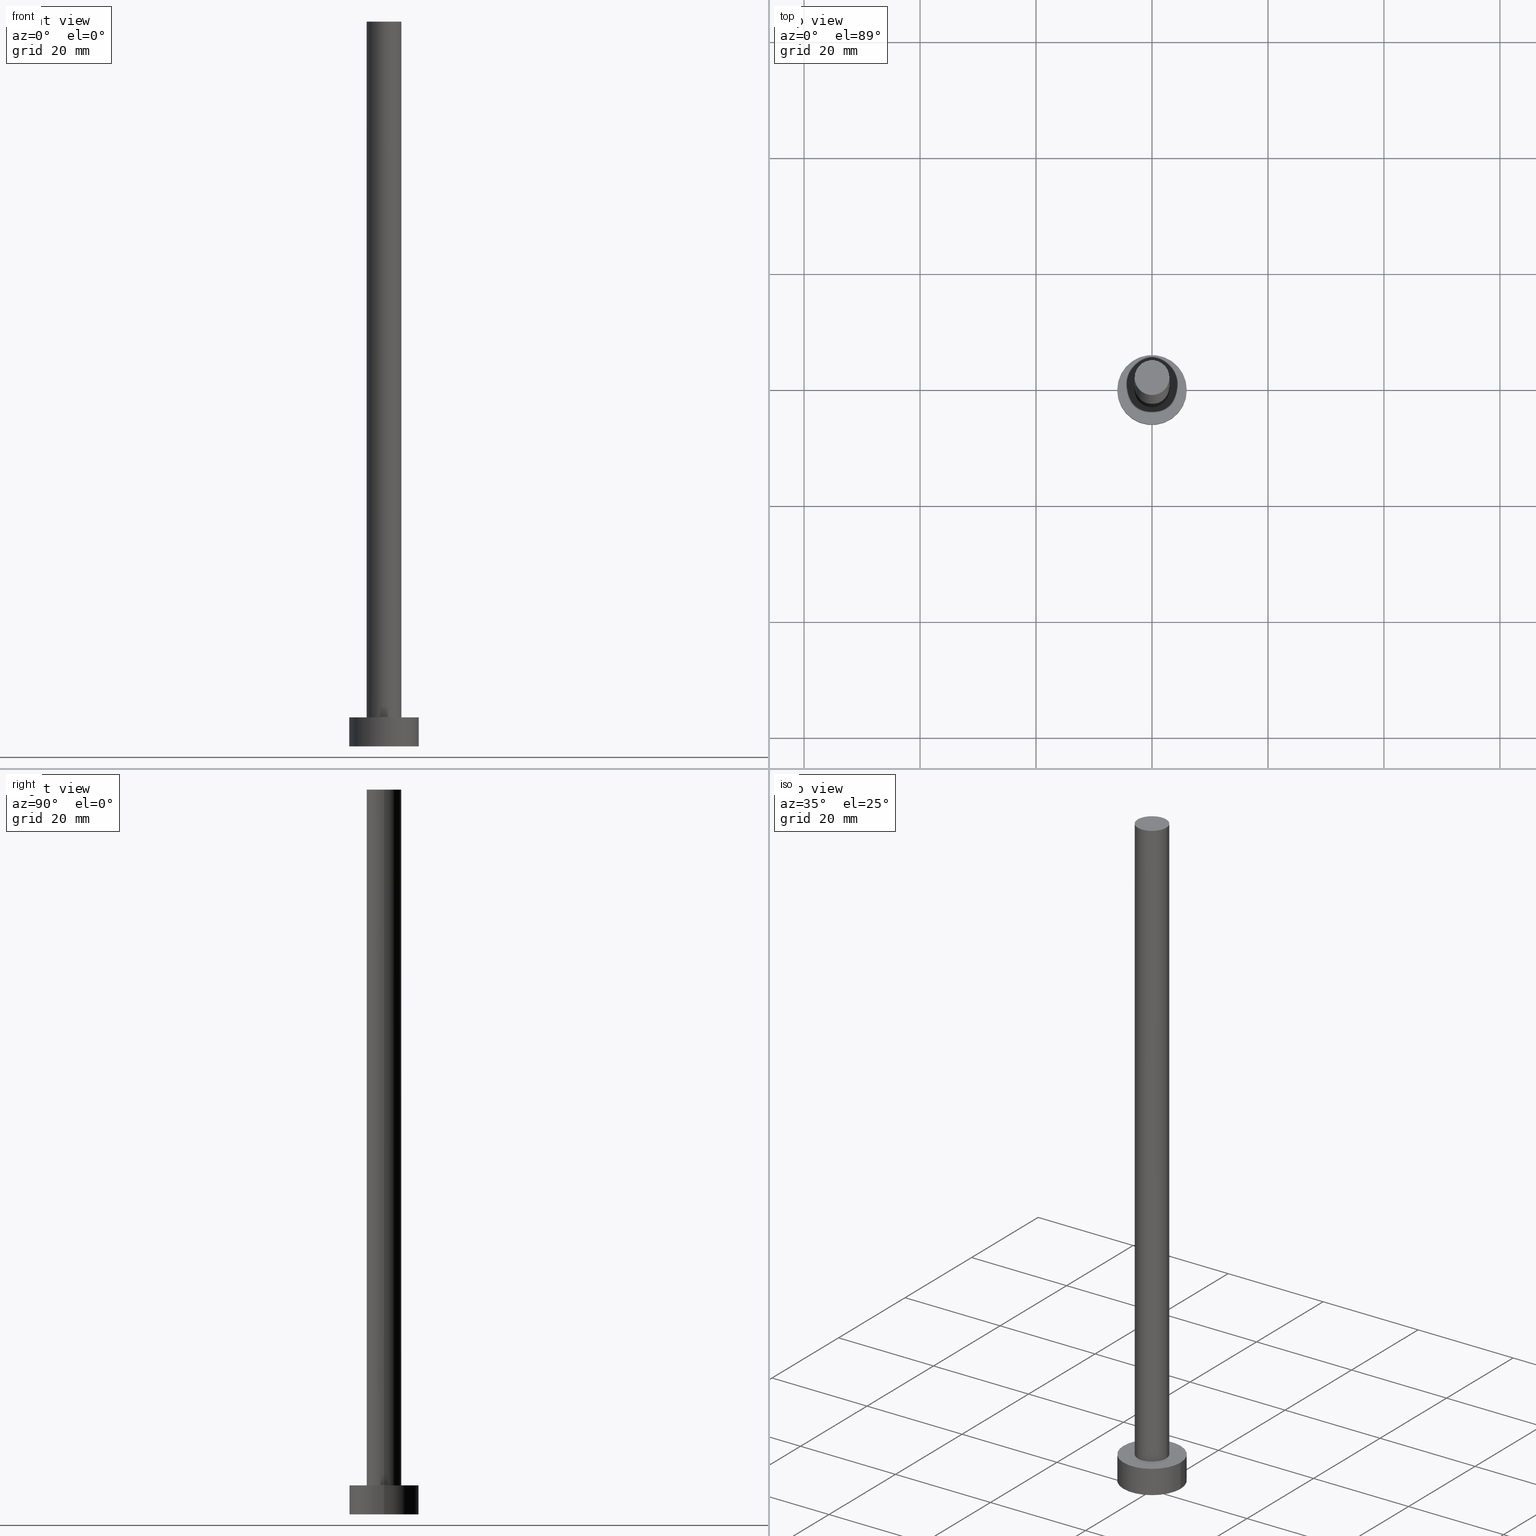
[diagram: canonical four-view strip — front | top / right | iso, engineering-drawing reading convention]
A machine part, canonical four-view strip (front | top / right | iso — engineering-drawing reading convention). The complete STEP part file that produces these views, byte-faithful:
ISO-10303-21;
HEADER;
FILE_DESCRIPTION (( 'STEP AP203' ),
    '1' );
FILE_NAME ('daf2.STEP',
    '2023-02-13T12:38:32',
    ( '' ),
    ( '' ),
    'SwSTEP 2.0',
    'SolidWorks 2019',
    '' );
FILE_SCHEMA (( 'CONFIG_CONTROL_DESIGN' ));
ENDSEC;

DATA;
#1 = EDGE_CURVE ( 'NONE', #182, #237, #229, .T. ) ;
#2 = AXIS2_PLACEMENT_3D ( 'NONE', #90, #40, #206 ) ;
#3 = PERSON_AND_ORGANIZATION_ROLE ( 'classification_officer' ) ;
#4 = ORIENTED_EDGE ( 'NONE', *, *, #82, .T. ) ;
#5 = DIRECTION ( 'NONE',  ( -0.000000000000000000, -0.000000000000000000, -1.000000000000000000 ) ) ;
#6 = CARTESIAN_POINT ( 'NONE',  ( 0.000000000000000000, 0.000000000000000000, 5.000000000000000000 ) ) ;
#7 = PRODUCT_RELATED_PRODUCT_CATEGORY ( 'detail', '', ( #83 ) ) ;
#8 = CARTESIAN_POINT ( 'NONE',  ( 0.000000000000000000, 0.000000000000000000, 5.000000000000000000 ) ) ;
#9 = CC_DESIGN_DATE_AND_TIME_ASSIGNMENT ( #246, #61, ( #169 ) ) ;
#10 = LOCAL_TIME ( 13, 38, 32.00000000000000000, #65 ) ;
#11 = CARTESIAN_POINT ( 'NONE',  ( 3.000000000000000444, 3.673940397442060361E-16, 5.000000000000000000 ) ) ;
#12 = CYLINDRICAL_SURFACE ( 'NONE', #85, 6.000000000000000888 ) ;
#13 = CARTESIAN_POINT ( 'NONE',  ( 3.000000000000000444, 3.673940397442060361E-16, 125.0000000000000000 ) ) ;
#14 = VECTOR ( 'NONE', #80, 1000.000000000000000 ) ;
#15 = CC_DESIGN_PERSON_AND_ORGANIZATION_ASSIGNMENT ( #76, #213, ( #198 ) ) ;
#16 = CARTESIAN_POINT ( 'NONE',  ( 0.000000000000000000, 0.000000000000000000, 5.000000000000000000 ) ) ;
#17 = ADVANCED_FACE ( 'NONE', ( #71 ), #151, .T. ) ;
#18 = AXIS2_PLACEMENT_3D ( 'NONE', #242, #87, #202 ) ;
#19 = COORDINATED_UNIVERSAL_TIME_OFFSET ( 1, 0, .AHEAD. ) ;
#20 = EDGE_LOOP ( 'NONE', ( #239, #214 ) ) ;
#21 = PERSON_AND_ORGANIZATION ( #105, #179 ) ;
#22 = ORIENTED_EDGE ( 'NONE', *, *, #26, .T. ) ;
#23 = ADVANCED_FACE ( 'NONE', ( #215 ), #28, .T. ) ;
#24 = PERSON_AND_ORGANIZATION ( #105, #179 ) ;
#25 = EDGE_LOOP ( 'NONE', ( #114, #240 ) ) ;
#26 = EDGE_CURVE ( 'NONE', #255, #96, #143, .T. ) ;
#27 = DATE_AND_TIME ( #54, #170 ) ;
#28 = PLANE ( 'NONE',  #53 ) ;
#29 = CC_DESIGN_APPROVAL ( #32, ( #198 ) ) ;
#30 = ORIENTED_EDGE ( 'NONE', *, *, #110, .F. ) ;
#31 = LINE ( 'NONE', #102, #188 ) ;
#32 = APPROVAL ( #149, 'NEUR�EN�' ) ;
#33 = AXIS2_PLACEMENT_3D ( 'NONE', #8, #5, #84 ) ;
#34 = DIRECTION ( 'NONE',  ( 1.000000000000000000, 0.000000000000000000, 0.000000000000000000 ) ) ;
#35 = AXIS2_PLACEMENT_3D ( 'NONE', #126, #187, #208 ) ;
#36 = LINE ( 'NONE', #104, #112 ) ;
#37 = CARTESIAN_POINT ( 'NONE',  ( 0.000000000000000000, 0.000000000000000000, 0.000000000000000000 ) ) ;
#38 = DIRECTION ( 'NONE',  ( -1.000000000000000000, 0.000000000000000000, 0.000000000000000000 ) ) ;
#39 = APPROVAL_ROLE ( '' ) ;
#40 = DIRECTION ( 'NONE',  ( 0.000000000000000000, 0.000000000000000000, 1.000000000000000000 ) ) ;
#41 = EDGE_CURVE ( 'NONE', #237, #49, #36, .T. ) ;
#42 = CARTESIAN_POINT ( 'NONE',  ( 0.000000000000000000, 0.000000000000000000, 125.0000000000000000 ) ) ;
#43 = ADVANCED_FACE ( 'NONE', ( #81 ), #219, .T. ) ;
#44 = MECHANICAL_CONTEXT ( 'NONE', #45, 'mechanical' ) ;
#45 = APPLICATION_CONTEXT ( 'configuration controlled 3d designs of mechanical parts and assemblies' ) ;
#46 = EDGE_LOOP ( 'NONE', ( #113, #4, #97, #150 ) ) ;
#47 = APPROVAL_PERSON_ORGANIZATION ( #73, #181, #50 ) ;
#48 = CIRCLE ( 'NONE', #201, 3.000000000000000444 ) ;
#49 = VERTEX_POINT ( 'NONE', #106 ) ;
#50 = APPROVAL_ROLE ( '' ) ;
#51 = CARTESIAN_POINT ( 'NONE',  ( 0.000000000000000000, 0.000000000000000000, 125.0000000000000000 ) ) ;
#52 = VERTEX_POINT ( 'NONE', #11 ) ;
#53 = AXIS2_PLACEMENT_3D ( 'NONE', #154, #58, #140 ) ;
#54 = CALENDAR_DATE ( 2023, 13, 2 ) ;
#55 = ORIENTED_EDGE ( 'NONE', *, *, #128, .F. ) ;
#56 = CARTESIAN_POINT ( 'NONE',  ( -6.000000000000000888, 0.000000000000000000, 5.000000000000000000 ) ) ;
#57 = AXIS2_PLACEMENT_3D ( 'NONE', #60, #205, #124 ) ;
#58 = DIRECTION ( 'NONE',  ( 0.000000000000000000, 0.000000000000000000, 1.000000000000000000 ) ) ;
#59 = DIRECTION ( 'NONE',  ( 1.000000000000000000, 0.000000000000000000, -0.000000000000000000 ) ) ;
#60 = CARTESIAN_POINT ( 'NONE',  ( 0.000000000000000000, 0.000000000000000000, 5.000000000000000000 ) ) ;
#61 = DATE_TIME_ROLE ( 'creation_date' ) ;
#62 = APPLICATION_PROTOCOL_DEFINITION ( 'international standard', 'config_control_design', 1994, #45 ) ;
#63 = DIRECTION ( 'NONE',  ( 1.000000000000000000, 0.000000000000000000, 0.000000000000000000 ) ) ;
#64 = ADVANCED_FACE ( 'NONE', ( #185 ), #171, .T. ) ;
#65 = COORDINATED_UNIVERSAL_TIME_OFFSET ( 1, 0, .AHEAD. ) ;
#66 = APPROVAL_ROLE ( '' ) ;
#67 = EDGE_LOOP ( 'NONE', ( #199, #100, #167, #99 ) ) ;
#68 = ORIENTED_EDGE ( 'NONE', *, *, #204, .F. ) ;
#69 = AXIS2_PLACEMENT_3D ( 'NONE', #221, #245, #34 ) ;
#70 = LOCAL_TIME ( 13, 38, 32.00000000000000000, #180 ) ;
#71 = FACE_OUTER_BOUND ( 'NONE', #67, .T. ) ;
#72 = CC_DESIGN_PERSON_AND_ORGANIZATION_ASSIGNMENT ( #178, #211, ( #198 ) ) ;
#73 = PERSON_AND_ORGANIZATION ( #105, #179 ) ;
#74 = CARTESIAN_POINT ( 'NONE',  ( 0.000000000000000000, 0.000000000000000000, 125.0000000000000000 ) ) ;
#75 = EDGE_CURVE ( 'NONE', #96, #255, #248, .T. ) ;
#76 = PERSON_AND_ORGANIZATION ( #105, #179 ) ;
#77 = ORIENTED_EDGE ( 'NONE', *, *, #110, .T. ) ;
#78 = PLANE ( 'NONE',  #164 ) ;
#79 =( GEOMETRIC_REPRESENTATION_CONTEXT ( 3 ) GLOBAL_UNCERTAINTY_ASSIGNED_CONTEXT ( ( #252 ) ) GLOBAL_UNIT_ASSIGNED_CONTEXT ( ( #108, #207, #107 ) ) REPRESENTATION_CONTEXT ( 'NONE', 'WORKASPACE' ) );
#80 = DIRECTION ( 'NONE',  ( -0.000000000000000000, -0.000000000000000000, -1.000000000000000000 ) ) ;
#81 = FACE_OUTER_BOUND ( 'NONE', #46, .T. ) ;
#82 = EDGE_CURVE ( 'NONE', #182, #52, #243, .T. ) ;
#83 = PRODUCT ( 'daf2', 'daf2', '', ( #44 ) ) ;
#84 = DIRECTION ( 'NONE',  ( -1.000000000000000000, 0.000000000000000000, 0.000000000000000000 ) ) ;
#85 = AXIS2_PLACEMENT_3D ( 'NONE', #16, #88, #125 ) ;
#86 = ADVANCED_FACE ( 'NONE', ( #121 ), #78, .F. ) ;
#87 = DIRECTION ( 'NONE',  ( 0.000000000000000000, 0.000000000000000000, 1.000000000000000000 ) ) ;
#88 = DIRECTION ( 'NONE',  ( -0.000000000000000000, -0.000000000000000000, -1.000000000000000000 ) ) ;
#89 = ADVANCED_FACE ( 'NONE', ( #203, #157 ), #222, .T. ) ;
#90 = CARTESIAN_POINT ( 'NONE',  ( 0.000000000000000000, 0.000000000000000000, 5.000000000000000000 ) ) ;
#91 = CC_DESIGN_SECURITY_CLASSIFICATION ( #193, ( #198 ) ) ;
#92 = DIRECTION ( 'NONE',  ( 1.000000000000000000, 0.000000000000000000, 0.000000000000000000 ) ) ;
#93 = CALENDAR_DATE ( 2023, 13, 2 ) ;
#94 = DATE_TIME_ROLE ( 'classification_date' ) ;
#95 = DATE_AND_TIME ( #232, #70 ) ;
#96 = VERTEX_POINT ( 'NONE', #241 ) ;
#97 = ORIENTED_EDGE ( 'NONE', *, *, #128, .T. ) ;
#98 = VECTOR ( 'NONE', #138, 1000.000000000000000 ) ;
#99 = ORIENTED_EDGE ( 'NONE', *, *, #146, .T. ) ;
#100 = ORIENTED_EDGE ( 'NONE', *, *, #249, .F. ) ;
#101 = MANIFOLD_SOLID_BREP ( 'P�idat vysunut�m3', #217 ) ;
#102 = CARTESIAN_POINT ( 'NONE',  ( 6.000000000000000888, 7.347880794884120722E-16, 5.000000000000000000 ) ) ;
#103 = DESIGN_CONTEXT ( 'detailed design', #195, 'design' ) ;
#104 = CARTESIAN_POINT ( 'NONE',  ( -3.000000000000000444, 0.000000000000000000, 125.0000000000000000 ) ) ;
#105 = PERSON ( 'NEUR�EN�', 'NEUR�EN�', 'NEUR�EN�', ('NEUR�EN�'), ('NEUR�EN�'), ('NEUR�EN�') ) ;
#106 = CARTESIAN_POINT ( 'NONE',  ( -3.000000000000000444, 0.000000000000000000, 5.000000000000000000 ) ) ;
#107 =( NAMED_UNIT ( * ) SI_UNIT ( $, .STERADIAN. ) SOLID_ANGLE_UNIT ( ) );
#108 =( LENGTH_UNIT ( ) NAMED_UNIT ( * ) SI_UNIT ( .MILLI., .METRE. ) );
#109 = LOCAL_TIME ( 13, 38, 32.00000000000000000, #135 ) ;
#110 = EDGE_CURVE ( 'NONE', #133, #96, #31, .T. ) ;
#111 = CARTESIAN_POINT ( 'NONE',  ( 0.000000000000000000, 0.000000000000000000, 5.000000000000000000 ) ) ;
#112 = VECTOR ( 'NONE', #141, 1000.000000000000000 ) ;
#113 = ORIENTED_EDGE ( 'NONE', *, *, #1, .F. ) ;
#114 = ORIENTED_EDGE ( 'NONE', *, *, #26, .F. ) ;
#115 = CALENDAR_DATE ( 2023, 13, 2 ) ;
#116 = DIRECTION ( 'NONE',  ( -1.000000000000000000, 0.000000000000000000, 0.000000000000000000 ) ) ;
#117 = CC_DESIGN_APPROVAL ( #122, ( #169 ) ) ;
#118 = EDGE_CURVE ( 'NONE', #218, #255, #220, .T. ) ;
#119 = EDGE_LOOP ( 'NONE', ( #192, #236 ) ) ;
#120 = CIRCLE ( 'NONE', #224, 3.000000000000000444 ) ;
#121 = FACE_OUTER_BOUND ( 'NONE', #25, .T. ) ;
#122 = APPROVAL ( #253, 'NEUR�EN�' ) ;
#123 = AXIS2_PLACEMENT_3D ( 'NONE', #51, #196, #116 ) ;
#124 = DIRECTION ( 'NONE',  ( 1.000000000000000000, 0.000000000000000000, -0.000000000000000000 ) ) ;
#125 = DIRECTION ( 'NONE',  ( -1.000000000000000000, 0.000000000000000000, 0.000000000000000000 ) ) ;
#126 = CARTESIAN_POINT ( 'NONE',  ( 0.000000000000000000, 0.000000000000000000, 0.000000000000000000 ) ) ;
#127 = PERSON_AND_ORGANIZATION_ROLE ( 'creator' ) ;
#128 = EDGE_CURVE ( 'NONE', #52, #49, #120, .T. ) ;
#129 = CC_DESIGN_PERSON_AND_ORGANIZATION_ASSIGNMENT ( #251, #173, ( #83 ) ) ;
#130 = LOCAL_TIME ( 13, 38, 32.00000000000000000, #247 ) ;
#131 = SECURITY_CLASSIFICATION_LEVEL ( 'unclassified' ) ;
#132 = DIRECTION ( 'NONE',  ( 0.000000000000000000, 0.000000000000000000, 1.000000000000000000 ) ) ;
#133 = VERTEX_POINT ( 'NONE', #210 ) ;
#134 = EDGE_CURVE ( 'NONE', #133, #218, #176, .T. ) ;
#135 = COORDINATED_UNIVERSAL_TIME_OFFSET ( 1, 0, .AHEAD. ) ;
#136 = ORIENTED_EDGE ( 'NONE', *, *, #134, .F. ) ;
#137 = ORIENTED_EDGE ( 'NONE', *, *, #118, .F. ) ;
#138 = DIRECTION ( 'NONE',  ( -0.000000000000000000, -0.000000000000000000, -1.000000000000000000 ) ) ;
#139 = AXIS2_PLACEMENT_3D ( 'NONE', #74, #132, #165 ) ;
#140 = DIRECTION ( 'NONE',  ( 1.000000000000000000, 0.000000000000000000, -0.000000000000000000 ) ) ;
#141 = DIRECTION ( 'NONE',  ( -0.000000000000000000, -0.000000000000000000, -1.000000000000000000 ) ) ;
#142 = DIRECTION ( 'NONE',  ( 0.000000000000000000, 0.000000000000000000, 1.000000000000000000 ) ) ;
#143 = CIRCLE ( 'NONE', #18, 6.000000000000000888 ) ;
#144 = DIRECTION ( 'NONE',  ( 1.000000000000000000, 0.000000000000000000, 0.000000000000000000 ) ) ;
#145 = APPROVAL_PERSON_ORGANIZATION ( #21, #32, #66 ) ;
#146 = EDGE_CURVE ( 'NONE', #49, #52, #48, .T. ) ;
#147 = APPROVAL_DATE_TIME ( #95, #32 ) ;
#148 = ORIENTED_EDGE ( 'NONE', *, *, #146, .F. ) ;
#149 = APPROVAL_STATUS ( 'not_yet_approved' ) ;
#150 = ORIENTED_EDGE ( 'NONE', *, *, #41, .F. ) ;
#151 = CYLINDRICAL_SURFACE ( 'NONE', #123, 3.000000000000000444 ) ;
#152 = APPROVAL_STATUS ( 'not_yet_approved' ) ;
#153 = DIRECTION ( 'NONE',  ( -0.000000000000000000, -0.000000000000000000, -1.000000000000000000 ) ) ;
#154 = CARTESIAN_POINT ( 'NONE',  ( 0.000000000000000000, 0.000000000000000000, 125.0000000000000000 ) ) ;
#155 = PRODUCT_DEFINITION_SHAPE ( 'NONE', 'NONE',  #169 ) ;
#156 = ADVANCED_BREP_SHAPE_REPRESENTATION ( 'daf2', ( #101, #35 ), #79 ) ;
#157 = FACE_OUTER_BOUND ( 'NONE', #119, .T. ) ;
#158 = DIRECTION ( 'NONE',  ( 0.000000000000000000, 0.000000000000000000, 1.000000000000000000 ) ) ;
#159 = AXIS2_PLACEMENT_3D ( 'NONE', #186, #184, #38 ) ;
#160 = DATE_AND_TIME ( #93, #130 ) ;
#161 = APPLICATION_PROTOCOL_DEFINITION ( 'international standard', 'config_control_design', 1994, #195 ) ;
#162 = APPROVAL_DATE_TIME ( #160, #122 ) ;
#163 = APPROVAL_DATE_TIME ( #27, #181 ) ;
#164 = AXIS2_PLACEMENT_3D ( 'NONE', #37, #142, #59 ) ;
#165 = DIRECTION ( 'NONE',  ( 1.000000000000000000, 0.000000000000000000, 0.000000000000000000 ) ) ;
#166 = EDGE_LOOP ( 'NONE', ( #30, #68, #177, #22 ) ) ;
#167 = ORIENTED_EDGE ( 'NONE', *, *, #41, .T. ) ;
#168 = CC_DESIGN_DATE_AND_TIME_ASSIGNMENT ( #235, #94, ( #193 ) ) ;
#169 = PRODUCT_DEFINITION ( 'NEZN�M�', '', #198, #103 ) ;
#170 = LOCAL_TIME ( 13, 38, 32.00000000000000000, #19 ) ;
#171 = CYLINDRICAL_SURFACE ( 'NONE', #33, 6.000000000000000888 ) ;
#172 = CALENDAR_DATE ( 2023, 13, 2 ) ;
#173 = PERSON_AND_ORGANIZATION_ROLE ( 'design_owner' ) ;
#174 = DIRECTION ( 'NONE',  ( 1.000000000000000000, 0.000000000000000000, 0.000000000000000000 ) ) ;
#175 = DIRECTION ( 'NONE',  ( 0.000000000000000000, 0.000000000000000000, 1.000000000000000000 ) ) ;
#176 = CIRCLE ( 'NONE', #244, 6.000000000000000888 ) ;
#177 = ORIENTED_EDGE ( 'NONE', *, *, #118, .T. ) ;
#178 = PERSON_AND_ORGANIZATION ( #105, #179 ) ;
#179 = ORGANIZATION ( 'NEUR�EN�', 'NEUR�EN�', '' ) ;
#180 = COORDINATED_UNIVERSAL_TIME_OFFSET ( 1, 0, .AHEAD. ) ;
#181 = APPROVAL ( #152, 'NEUR�EN�' ) ;
#182 = VERTEX_POINT ( 'NONE', #13 ) ;
#183 = CC_DESIGN_APPROVAL ( #181, ( #193 ) ) ;
#184 = DIRECTION ( 'NONE',  ( -0.000000000000000000, -0.000000000000000000, -1.000000000000000000 ) ) ;
#185 = FACE_OUTER_BOUND ( 'NONE', #197, .T. ) ;
#186 = CARTESIAN_POINT ( 'NONE',  ( 0.000000000000000000, 0.000000000000000000, 125.0000000000000000 ) ) ;
#187 = DIRECTION ( 'NONE',  ( 0.000000000000000000, 0.000000000000000000, 1.000000000000000000 ) ) ;
#188 = VECTOR ( 'NONE', #153, 1000.000000000000000 ) ;
#189 = CARTESIAN_POINT ( 'NONE',  ( 0.000000000000000000, 0.000000000000000000, 5.000000000000000000 ) ) ;
#190 = DIRECTION ( 'NONE',  ( 0.000000000000000000, 0.000000000000000000, 1.000000000000000000 ) ) ;
#191 = DIRECTION ( 'NONE',  ( 0.000000000000000000, 0.000000000000000000, 1.000000000000000000 ) ) ;
#192 = ORIENTED_EDGE ( 'NONE', *, *, #204, .T. ) ;
#193 = SECURITY_CLASSIFICATION ( '', '', #131 ) ;
#194 = ADVANCED_FACE ( 'NONE', ( #223 ), #12, .T. ) ;
#195 = APPLICATION_CONTEXT ( 'configuration controlled 3d designs of mechanical parts and assemblies' ) ;
#196 = DIRECTION ( 'NONE',  ( -0.000000000000000000, -0.000000000000000000, -1.000000000000000000 ) ) ;
#197 = EDGE_LOOP ( 'NONE', ( #136, #77, #233, #137 ) ) ;
#198 = PRODUCT_DEFINITION_FORMATION_WITH_SPECIFIED_SOURCE ( 'LIBOVOLN�', '', #83, .NOT_KNOWN. ) ;
#199 = ORIENTED_EDGE ( 'NONE', *, *, #82, .F. ) ;
#200 = CARTESIAN_POINT ( 'NONE',  ( 3.000000000000000444, 3.673940397442060361E-16, 125.0000000000000000 ) ) ;
#201 = AXIS2_PLACEMENT_3D ( 'NONE', #189, #158, #174 ) ;
#202 = DIRECTION ( 'NONE',  ( 1.000000000000000000, 0.000000000000000000, 0.000000000000000000 ) ) ;
#203 = FACE_BOUND ( 'NONE', #254, .T. ) ;
#204 = EDGE_CURVE ( 'NONE', #218, #133, #209, .T. ) ;
#205 = DIRECTION ( 'NONE',  ( 0.000000000000000000, 0.000000000000000000, 1.000000000000000000 ) ) ;
#206 = DIRECTION ( 'NONE',  ( 1.000000000000000000, 0.000000000000000000, 0.000000000000000000 ) ) ;
#207 =( NAMED_UNIT ( * ) PLANE_ANGLE_UNIT ( ) SI_UNIT ( $, .RADIAN. ) );
#208 = DIRECTION ( 'NONE',  ( 1.000000000000000000, 0.000000000000000000, 0.000000000000000000 ) ) ;
#209 = CIRCLE ( 'NONE', #2, 6.000000000000000888 ) ;
#210 = CARTESIAN_POINT ( 'NONE',  ( 6.000000000000000888, 7.347880794884120722E-16, 5.000000000000000000 ) ) ;
#211 = PERSON_AND_ORGANIZATION_ROLE ( 'creator' ) ;
#212 = CIRCLE ( 'NONE', #238, 3.000000000000000444 ) ;
#213 = PERSON_AND_ORGANIZATION_ROLE ( 'design_supplier' ) ;
#214 = ORIENTED_EDGE ( 'NONE', *, *, #1, .T. ) ;
#215 = FACE_OUTER_BOUND ( 'NONE', #20, .T. ) ;
#216 = SHAPE_DEFINITION_REPRESENTATION ( #155, #156 ) ;
#217 = CLOSED_SHELL ( 'NONE', ( #43, #64, #194, #89, #86, #17, #23 ) ) ;
#218 = VERTEX_POINT ( 'NONE', #226 ) ;
#219 = CYLINDRICAL_SURFACE ( 'NONE', #159, 3.000000000000000444 ) ;
#220 = LINE ( 'NONE', #56, #98 ) ;
#221 = CARTESIAN_POINT ( 'NONE',  ( 0.000000000000000000, 0.000000000000000000, 0.000000000000000000 ) ) ;
#222 = PLANE ( 'NONE',  #57 ) ;
#223 = FACE_OUTER_BOUND ( 'NONE', #166, .T. ) ;
#224 = AXIS2_PLACEMENT_3D ( 'NONE', #6, #175, #63 ) ;
#225 = PERSON_AND_ORGANIZATION ( #105, #179 ) ;
#226 = CARTESIAN_POINT ( 'NONE',  ( -6.000000000000000888, 0.000000000000000000, 5.000000000000000000 ) ) ;
#227 = PERSON_AND_ORGANIZATION ( #105, #179 ) ;
#228 = CC_DESIGN_PERSON_AND_ORGANIZATION_ASSIGNMENT ( #225, #127, ( #169 ) ) ;
#229 = CIRCLE ( 'NONE', #139, 3.000000000000000444 ) ;
#230 = CARTESIAN_POINT ( 'NONE',  ( -6.000000000000000888, 0.000000000000000000, 0.000000000000000000 ) ) ;
#231 = APPROVAL_PERSON_ORGANIZATION ( #227, #122, #39 ) ;
#232 = CALENDAR_DATE ( 2023, 13, 2 ) ;
#233 = ORIENTED_EDGE ( 'NONE', *, *, #75, .T. ) ;
#234 = CC_DESIGN_PERSON_AND_ORGANIZATION_ASSIGNMENT ( #24, #3, ( #193 ) ) ;
#235 = DATE_AND_TIME ( #115, #109 ) ;
#236 = ORIENTED_EDGE ( 'NONE', *, *, #134, .T. ) ;
#237 = VERTEX_POINT ( 'NONE', #250 ) ;
#238 = AXIS2_PLACEMENT_3D ( 'NONE', #42, #191, #144 ) ;
#239 = ORIENTED_EDGE ( 'NONE', *, *, #249, .T. ) ;
#240 = ORIENTED_EDGE ( 'NONE', *, *, #75, .F. ) ;
#241 = CARTESIAN_POINT ( 'NONE',  ( 6.000000000000000888, 7.347880794884120722E-16, 0.000000000000000000 ) ) ;
#242 = CARTESIAN_POINT ( 'NONE',  ( 0.000000000000000000, 0.000000000000000000, 0.000000000000000000 ) ) ;
#243 = LINE ( 'NONE', #200, #14 ) ;
#244 = AXIS2_PLACEMENT_3D ( 'NONE', #111, #190, #92 ) ;
#245 = DIRECTION ( 'NONE',  ( 0.000000000000000000, 0.000000000000000000, 1.000000000000000000 ) ) ;
#246 = DATE_AND_TIME ( #172, #10 ) ;
#247 = COORDINATED_UNIVERSAL_TIME_OFFSET ( 1, 0, .AHEAD. ) ;
#248 = CIRCLE ( 'NONE', #69, 6.000000000000000888 ) ;
#249 = EDGE_CURVE ( 'NONE', #237, #182, #212, .T. ) ;
#250 = CARTESIAN_POINT ( 'NONE',  ( -3.000000000000000444, 0.000000000000000000, 125.0000000000000000 ) ) ;
#251 = PERSON_AND_ORGANIZATION ( #105, #179 ) ;
#252 = UNCERTAINTY_MEASURE_WITH_UNIT (LENGTH_MEASURE( 1.000000000000000082E-05 ), #108, 'distance_accuracy_value', 'NONE');
#253 = APPROVAL_STATUS ( 'not_yet_approved' ) ;
#254 = EDGE_LOOP ( 'NONE', ( #148, #55 ) ) ;
#255 = VERTEX_POINT ( 'NONE', #230 ) ;
ENDSEC;
END-ISO-10303-21;
